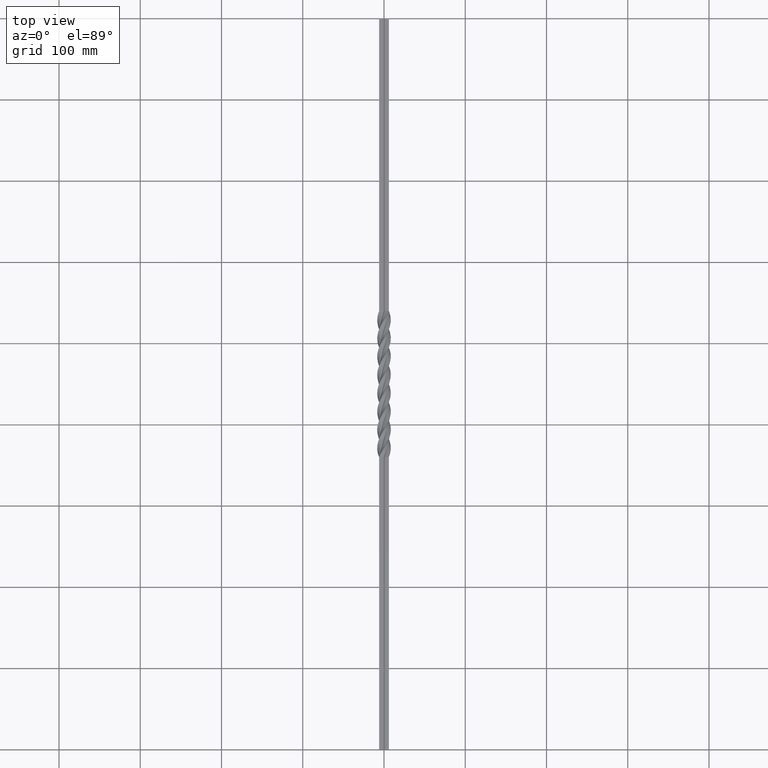
[diagram: clean part render]
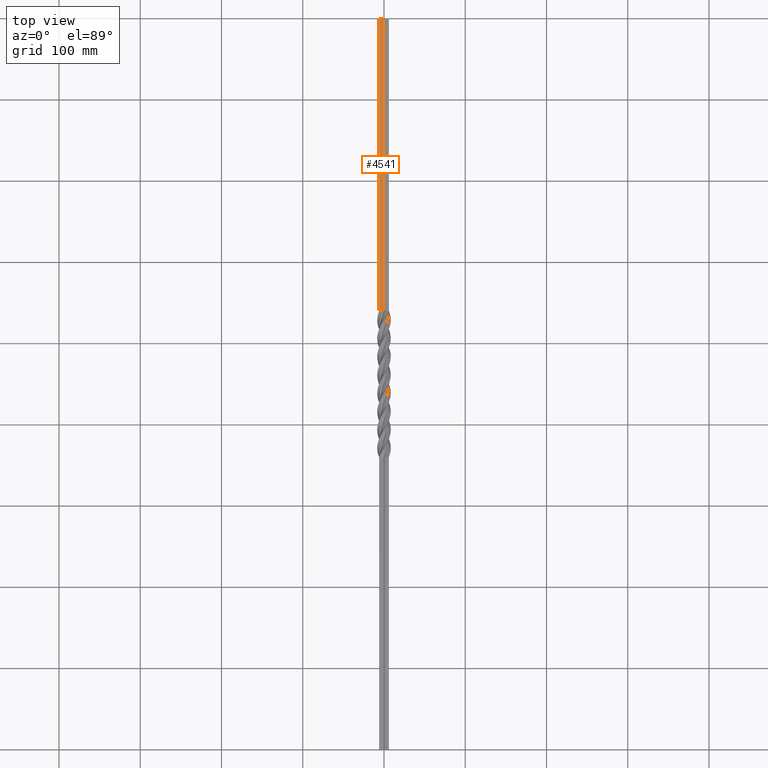
[diagram: same view with one face highlighted and labeled with its STEP entity id]
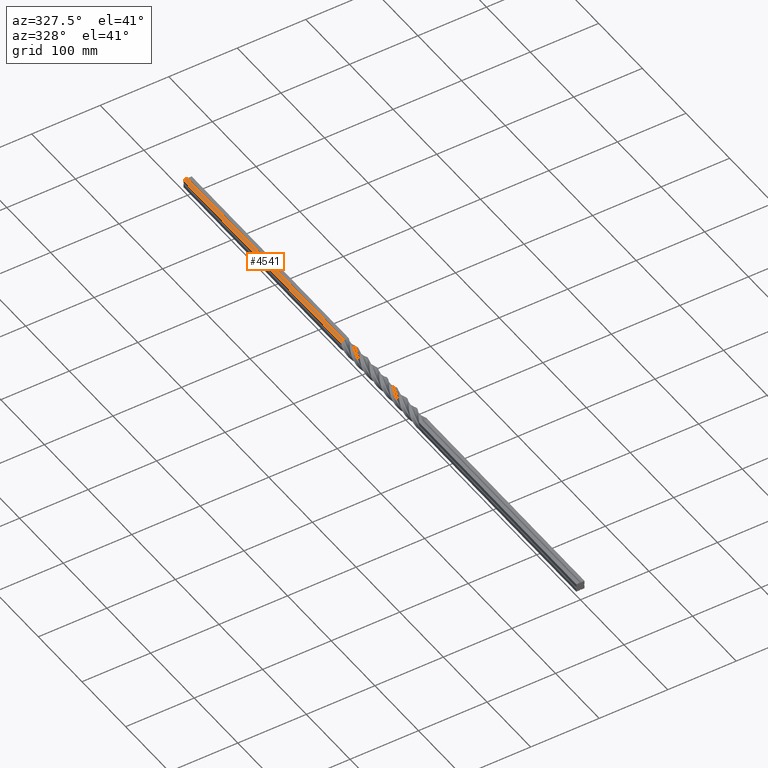
[diagram: same view with one face highlighted and labeled with its STEP entity id]
A machine part, top view. The second image highlights one B-rep face of the part: STEP entity #4541.
A second angle (auxiliary view) of the same face is appended — the face is thin or edge-on in the first view.
In plain terms, the highlighted planar face has unit normal (0, 0, -1).
Its self-contained STEP definition (entity closure, byte-faithful):
#490 = CARTESIAN_POINT ( 'NONE',  ( -5.999999999999998224, 540.0000000000000000, 6.000000000000000888 ) ) ;
#936 = EDGE_CURVE ( 'NONE', #8307, #11256, #11420, .T. ) ;
#1240 = CARTESIAN_POINT ( 'NONE',  ( -5.999999999999998224, 900.0000000000000000, 6.000000000000000888 ) ) ;
#1563 = ORIENTED_EDGE ( 'NONE', *, *, #7909, .T. ) ;
#1892 = CARTESIAN_POINT ( 'NONE',  ( -0.9999999999999892308, 900.0000000000000000, 6.000000000000000888 ) ) ;
#2402 = DIRECTION ( 'NONE',  ( -1.000000000000000000, 0.000000000000000000, -0.000000000000000000 ) ) ;
#2648 = LINE ( 'NONE', #4977, #7091 ) ;
#2776 = CARTESIAN_POINT ( 'NONE',  ( -5.999999999999998224, 900.0000000000000000, 6.000000000000000888 ) ) ;
#3858 = DIRECTION ( 'NONE',  ( -0.000000000000000000, -1.000000000000000000, -0.000000000000000000 ) ) ;
#4070 = VERTEX_POINT ( 'NONE', #6768 ) ;
#4343 = LINE ( 'NONE', #1892, #6641 ) ;
#4454 = CARTESIAN_POINT ( 'NONE',  ( -5.999999999999998224, 540.0000000000000000, 6.000000000000000888 ) ) ;
#4541 = ADVANCED_FACE ( 'NONE', ( #9295 ), #5337, .F. ) ;
#4964 = LINE ( 'NONE', #2776, #8937 ) ;
#4977 = CARTESIAN_POINT ( 'NONE',  ( -5.999999999999998224, 900.0000000000000000, 6.000000000000000888 ) ) ;
#5337 = PLANE ( 'NONE',  #11348 ) ;
#5889 = EDGE_CURVE ( 'NONE', #4070, #11256, #4343, .T. ) ;
#6034 = CARTESIAN_POINT ( 'NONE',  ( -0.9999999999999890088, 540.0000000000000000, 6.000000000000000888 ) ) ;
#6617 = ORIENTED_EDGE ( 'NONE', *, *, #7324, .F. ) ;
#6641 = VECTOR ( 'NONE', #3858, 1000.000000000000000 ) ;
#6768 = CARTESIAN_POINT ( 'NONE',  ( -0.9999999999999892308, 900.0000000000000000, 6.000000000000000888 ) ) ;
#7091 = VECTOR ( 'NONE', #7095, 1000.000000000000000 ) ;
#7095 = DIRECTION ( 'NONE',  ( -0.000000000000000000, -1.000000000000000000, -0.000000000000000000 ) ) ;
#7324 = EDGE_CURVE ( 'NONE', #7949, #4070, #4964, .T. ) ;
#7909 = EDGE_CURVE ( 'NONE', #7949, #8307, #2648, .T. ) ;
#7949 = VERTEX_POINT ( 'NONE', #11398 ) ;
#8307 = VERTEX_POINT ( 'NONE', #4454 ) ;
#8540 = DIRECTION ( 'NONE',  ( 0.000000000000000000, 0.000000000000000000, -1.000000000000000000 ) ) ;
#8795 = EDGE_LOOP ( 'NONE', ( #1563, #12105, #12289, #6617 ) ) ;
#8937 = VECTOR ( 'NONE', #9133, 1000.000000000000000 ) ;
#9133 = DIRECTION ( 'NONE',  ( 1.000000000000000000, 0.000000000000000000, 0.000000000000000000 ) ) ;
#9295 = FACE_OUTER_BOUND ( 'NONE', #8795, .T. ) ;
#9912 = DIRECTION ( 'NONE',  ( 1.000000000000000000, -6.274767288963247119E-19, 0.000000000000000000 ) ) ;
#11256 = VERTEX_POINT ( 'NONE', #6034 ) ;
#11348 = AXIS2_PLACEMENT_3D ( 'NONE', #1240, #8540, #2402 ) ;
#11398 = CARTESIAN_POINT ( 'NONE',  ( -5.999999999999998224, 900.0000000000000000, 6.000000000000000888 ) ) ;
#11420 = LINE ( 'NONE', #490, #13247 ) ;
#12105 = ORIENTED_EDGE ( 'NONE', *, *, #936, .T. ) ;
#12289 = ORIENTED_EDGE ( 'NONE', *, *, #5889, .F. ) ;
#13247 = VECTOR ( 'NONE', #9912, 1000.000000000000000 ) ;